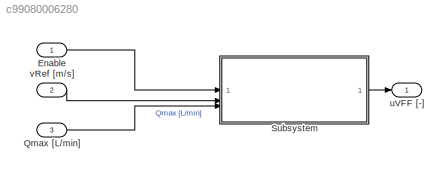
MODEL slx_c99080006280
KIND model
CONFIG AbsTol = auto
CONFIG EnableMultiTasking = off
CONFIG FixedStep = auto
CONFIG MaxStep = auto
CONFIG MinStep = auto
CONFIG RelTol = 1e-3
CONFIG SampleTimeConstraint = Unconstrained
CONFIG SolverName = VariableStepAuto
CONFIG StartTime = 0.0
CONFIG StopTime = 10.0
BLOCK [Inport] Enable
BLOCK [Inport] Qmax [L//min]
  Port = 3
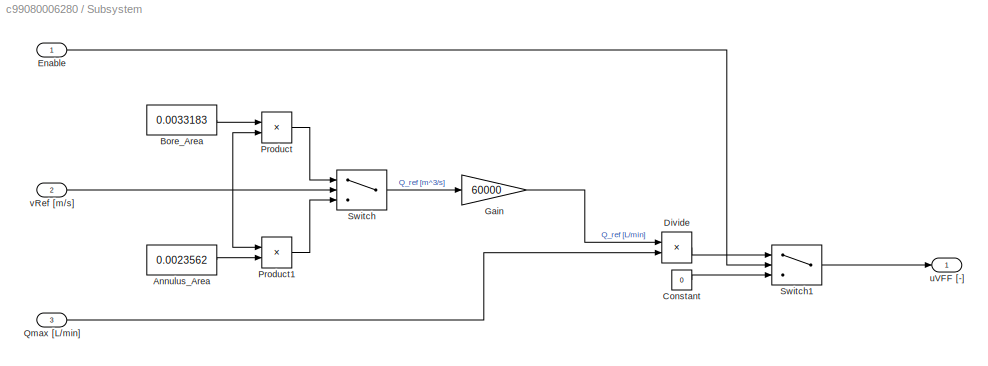
BLOCK [SubSystem] Subsystem
  TreatAsAtomicUnit = on
BLOCK [Constant] Subsystem/Annulus_Area
  Value = 0.0023562
BLOCK [Constant] Subsystem/Bore_Area
  Value = 0.0033183
BLOCK [Constant] Subsystem/Constant
  Value = 0
BLOCK [Product] Subsystem/Divide
  Inputs = */
BLOCK [Inport] Subsystem/Enable
BLOCK [Gain] Subsystem/Gain
  Gain = 60000
BLOCK [Product] Subsystem/Product
BLOCK [Product] Subsystem/Product1
BLOCK [Inport] Subsystem/Qmax [L//min]
  Port = 3
BLOCK [Switch] Subsystem/Switch
  Criteria = u2 > Threshold
  InputSameDT = off
  SaturateOnIntegerOverflow = off
BLOCK [Switch] Subsystem/Switch1
  Criteria = u2 > Threshold
  InputSameDT = off
  SaturateOnIntegerOverflow = off
BLOCK [Outport] Subsystem/uVFF [-]
BLOCK [Inport] Subsystem/vRef [m//s]
  Port = 2
BLOCK [Outport] uVFF [-]
BLOCK [Inport] vRef [m//s]
  Port = 2
LINE Enable:1 -> Subsystem:1
LINE Qmax [L//min]:1 -> Subsystem:3
LINE Subsystem/Annulus_Area:1 -> Subsystem/Product1:2
LINE Subsystem/Bore_Area:1 -> Subsystem/Product:1
LINE Subsystem/Constant:1 -> Subsystem/Switch1:3
LINE Subsystem/Divide:1 -> Subsystem/Switch1:1
LINE Subsystem/Enable:1 -> Subsystem/Switch1:2
LINE Subsystem/Gain:1 -> Subsystem/Divide:1
LINE Subsystem/Product1:1 -> Subsystem/Switch:3
LINE Subsystem/Product:1 -> Subsystem/Switch:1
LINE Subsystem/Qmax [L//min]:1 -> Subsystem/Divide:2
LINE Subsystem/Switch1:1 -> Subsystem/uVFF [-]:1
LINE Subsystem/Switch:1 -> Subsystem/Gain:1
NET Subsystem/vRef [m//s]:1 -> Subsystem/Product1:1, Subsystem/Product:2, Subsystem/Switch:2
LINE Subsystem:1 -> uVFF [-]:1
LINE vRef [m//s]:1 -> Subsystem:2
note: NET lines group one-source signal fan-out (src -> all destinations, sorted); 1:1 wires keep LINE
